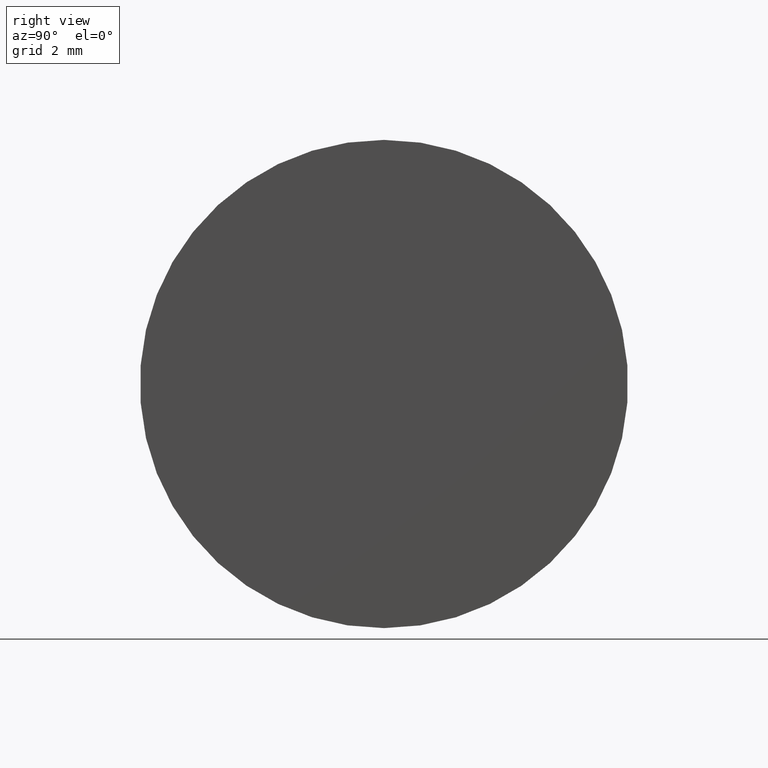
[diagram: clean part render]
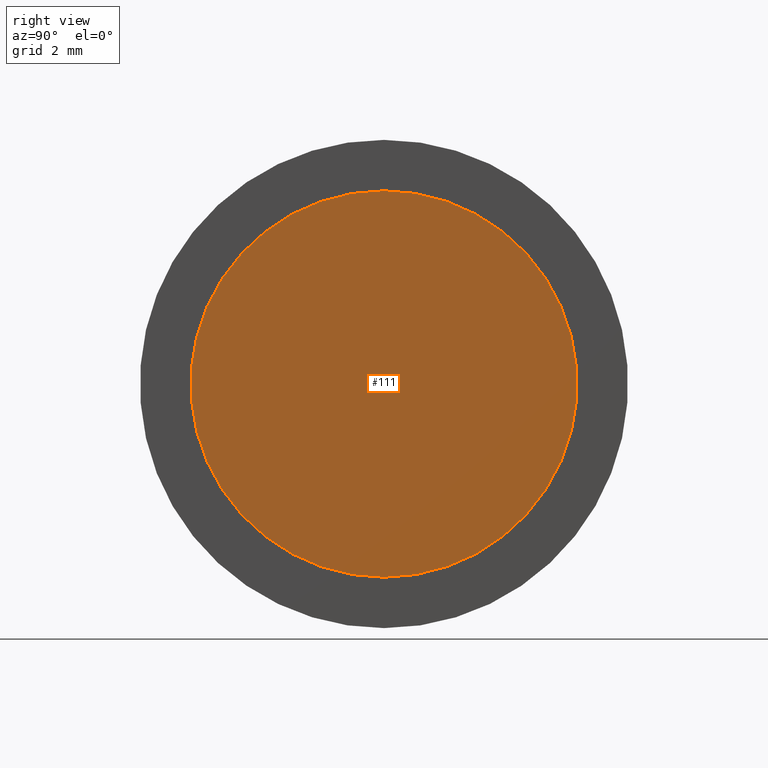
[diagram: same view with one face highlighted and labeled with its STEP entity id]
A machine part, right view. The second image highlights one B-rep face of the part: STEP entity #111.
In plain terms, the highlighted planar face has unit normal (1, 0, 0).
Its self-contained STEP definition (entity closure, byte-faithful):
#22 = EDGE_CURVE ( 'NONE', #533, #466, #426, .T. ) ;
#68 = DIRECTION ( 'NONE',  ( 0.0000000000000000000, 0.0000000000000000000, 1.000000000000000000 ) ) ;
#111 = ADVANCED_FACE ( 'NONE', ( #520 ), #592, .T. ) ;
#117 = DIRECTION ( 'NONE',  ( -1.000000000000000000, -0.0000000000000000000, -0.0000000000000000000 ) ) ;
#145 = DIRECTION ( 'NONE',  ( 1.000000000000000000, 0.0000000000000000000, 0.0000000000000000000 ) ) ;
#189 = EDGE_LOOP ( 'NONE', ( #253, #483 ) ) ;
#191 = CARTESIAN_POINT ( 'NONE',  ( 234.1145190849216200, 108.2256958952383700, 0.0000000000000000000 ) ) ;
#218 = CARTESIAN_POINT ( 'NONE',  ( 234.1145190849216200, 108.2256958952383700, 0.0000000000000000000 ) ) ;
#233 = CIRCLE ( 'NONE', #435, 5.025000000000015500 ) ;
#253 = ORIENTED_EDGE ( 'NONE', *, *, #477, .F. ) ;
#287 = CARTESIAN_POINT ( 'NONE',  ( 234.1145190849216200, 108.2256958952383700, -5.025000000000015500 ) ) ;
#333 = CARTESIAN_POINT ( 'NONE',  ( 234.1145190849216200, 0.0000000000000000000, 0.0000000000000000000 ) ) ;
#340 = DIRECTION ( 'NONE',  ( 0.0000000000000000000, 0.0000000000000000000, -1.000000000000000000 ) ) ;
#347 = AXIS2_PLACEMENT_3D ( 'NONE', #218, #117, #68 ) ;
#377 = CARTESIAN_POINT ( 'NONE',  ( 234.1145190849216200, 108.2256958952383700, 5.025000000000015500 ) ) ;
#416 = AXIS2_PLACEMENT_3D ( 'NONE', #333, #145, #340 ) ;
#426 = CIRCLE ( 'NONE', #347, 5.025000000000015500 ) ;
#435 = AXIS2_PLACEMENT_3D ( 'NONE', #191, #487, #584 ) ;
#466 = VERTEX_POINT ( 'NONE', #377 ) ;
#477 = EDGE_CURVE ( 'NONE', #466, #533, #233, .T. ) ;
#483 = ORIENTED_EDGE ( 'NONE', *, *, #22, .F. ) ;
#487 = DIRECTION ( 'NONE',  ( -1.000000000000000000, -0.0000000000000000000, -0.0000000000000000000 ) ) ;
#520 = FACE_OUTER_BOUND ( 'NONE', #189, .T. ) ;
#533 = VERTEX_POINT ( 'NONE', #287 ) ;
#584 = DIRECTION ( 'NONE',  ( 0.0000000000000000000, 0.0000000000000000000, 1.000000000000000000 ) ) ;
#592 = PLANE ( 'NONE',  #416 ) ;